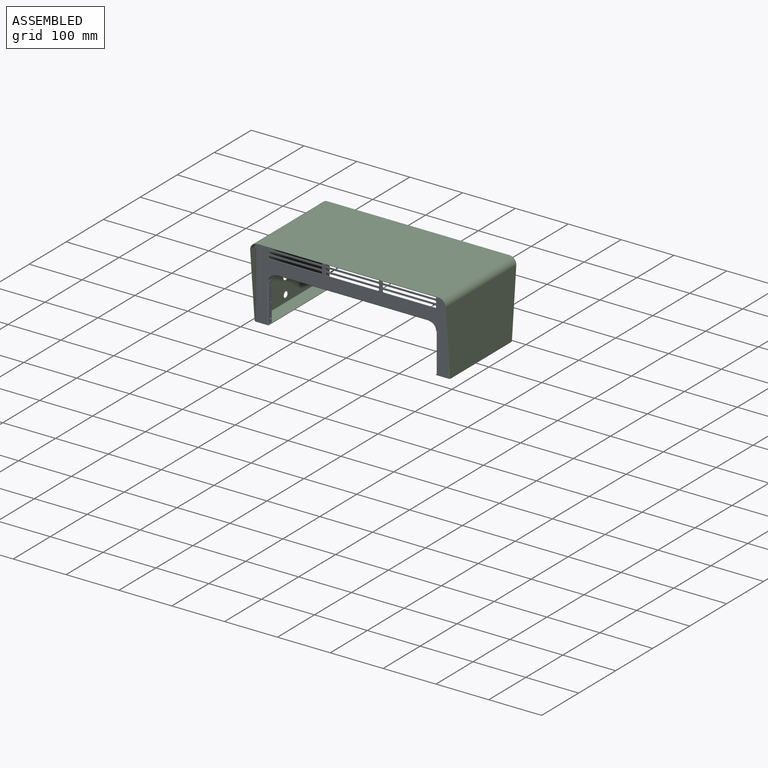
[diagram: assembled view]
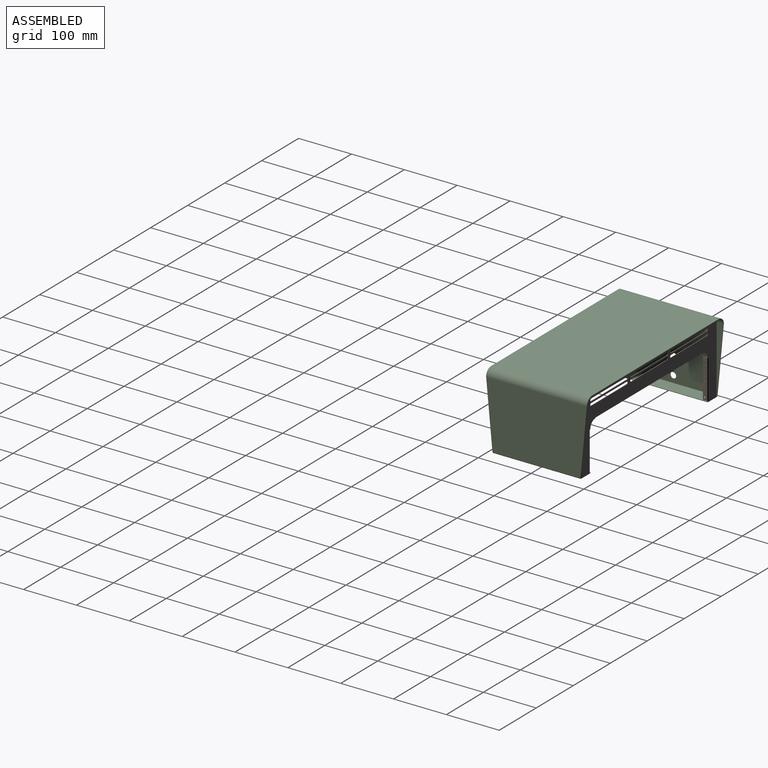
[diagram: assembled view, second angle]
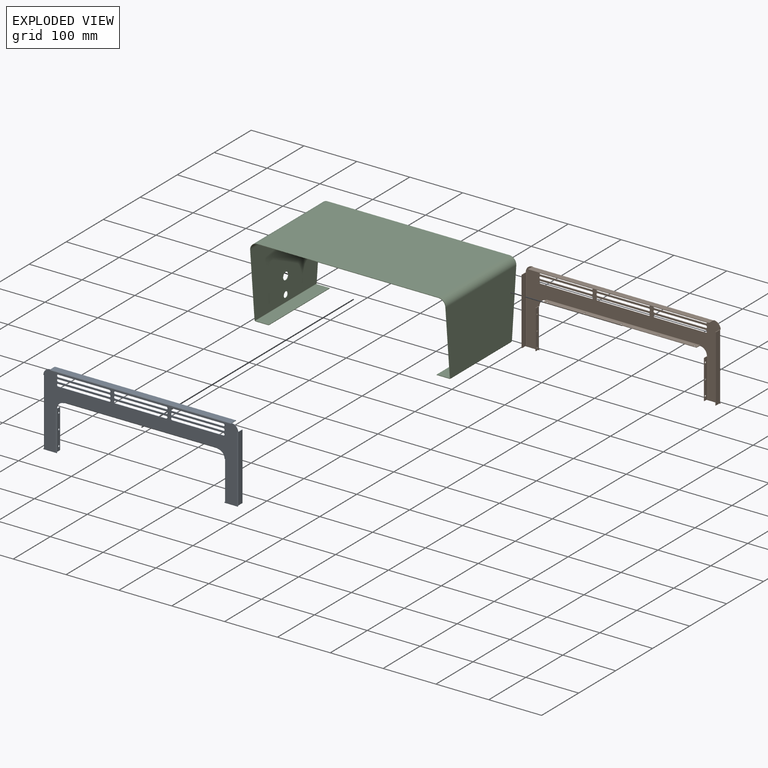
[diagram: exploded view]
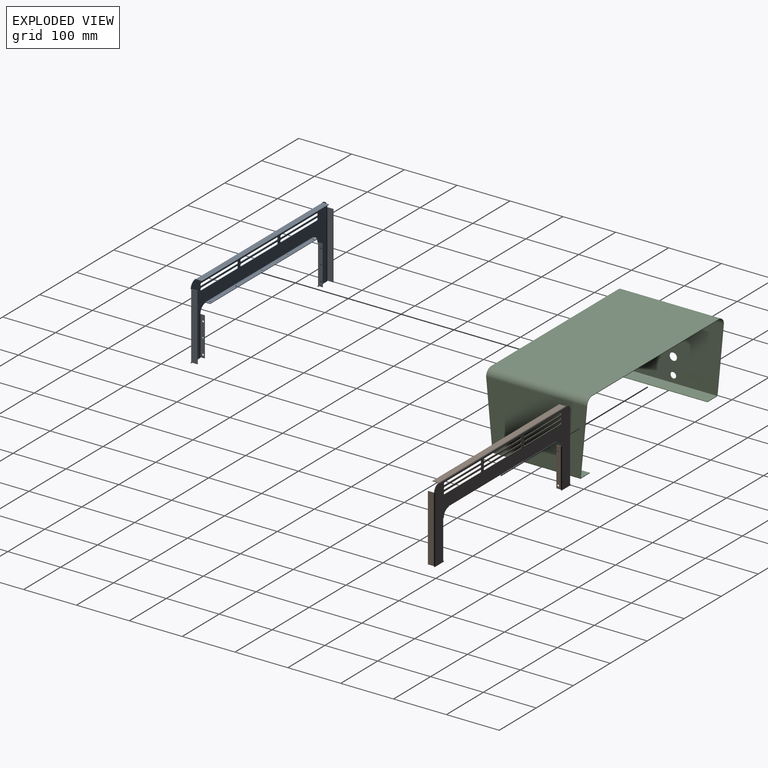
[diagram: exploded view, second angle]
ASSEMBLY  parts=3 mates=6
PART A: 127 faces, bbox 368.3x12.7x139.7 mm
  f0: plane 2.08x0.91mm, normal (0,0,-1), area 0.9mm2, adj f8,f58,f59,f82
  f1: plane 2.08x0.91mm, normal (0,0,1), area 0.9mm2, adj f12,f58,f59,f100
  f2: plane 2.08x0.91mm, normal (0,0,-1), area 0.9mm2, adj f16,f58,f59,f91
  f3: plane 2.08x0.91mm, normal (0,0,1), area 0.9mm2, adj f20,f58,f59,f104
  f4: plane 1.83x0.91mm, normal (-1,0,0), area 0.6mm2, adj f6,f58,f59,f78
  f5: plane 1.83x0.91mm, normal (1,0,0), area 0.6mm2, adj f14,f58,f59,f69
  f6: cylinder r=13.61mm len=13.61mm, axis (0,-1,0), area 19.6mm2, adj f4,f57,f58,f59
  f7: plane 1.83x0.91mm, normal (1,0,0), area 0.6mm2, adj f8,f58,f59,f78
  f8: cylinder r=13.61mm len=13.61mm, axis (0,-1,0), area 19.6mm2, adj f0,f7,f58,f59
  f9: plane 2.08x0.91mm, normal (0,0,1), area 0.9mm2, adj f10,f58,f59,f82
  f10: plane 1.59x0.91mm, normal (1,0,0), area 1.5mm2, adj f9,f11,f58,f59
  f11: plane 24.64x0.91mm, normal (0,0,-1), area 22.5mm2, adj f10,f58,f59,f60
  f12: plane 0.91x0.83mm, normal (-1,0,0), area 0.8mm2, adj f1,f58,f59,f60
  f13: plane 2.08x0.91mm, normal (0,0,-1), area 0.9mm2, adj f14,f58,f59,f100
  f14: cylinder r=12.7mm len=12.7mm, axis (0,-1,0), area 18.2mm2, adj f5,f13,f58,f59
  f15: plane 1.83x0.91mm, normal (-1,0,0), area 0.6mm2, adj f16,f58,f59,f69
  f16: cylinder r=12.7mm len=12.7mm, axis (0,-1,0), area 18.2mm2, adj f2,f15,f58,f59
  f17: plane 2.08x0.91mm, normal (0,0,1), area 0.9mm2, adj f18,f58,f59,f91
  f18: plane 0.91x0.83mm, normal (1,0,0), area 0.8mm2, adj f17,f58,f59,f61
  f19: plane 24.64x0.91mm, normal (0,0,-1), area 22.5mm2, adj f20,f58,f59,f61
  f20: plane 1.59x0.91mm, normal (-1,0,0), area 1.5mm2, adj f3,f19,f58,f59
  f21: plane 96.84x0.91mm, normal (0,0,1), area 88.5mm2, adj f22,f56,f58,f59
  f22: cylinder r=2.38mm len=4.76mm, axis (0,-1,0), area 6.8mm2, adj f21,f23,f58,f59
  f23: plane 96.84x0.91mm, normal (0,0,-1), area 88.5mm2, adj f22,f56,f58,f59
  f24: plane 96.84x0.91mm, normal (0,0,-1), area 88.5mm2, adj f25,f55,f58,f59
  f25: cylinder r=2.38mm len=4.76mm, axis (0,-1,0), area 6.8mm2, adj f24,f26,f58,f59
  f26: plane 96.84x0.91mm, normal (0,0,1), area 88.5mm2, adj f25,f55,f58,f59
  f27: plane 96.84x0.91mm, normal (0,0,1), area 88.5mm2, adj f28,f54,f58,f59
  f28: cylinder r=2.38mm len=4.76mm, axis (0,-1,0), area 6.8mm2, adj f27,f29,f58,f59
  f29: plane 96.84x0.91mm, normal (0,0,-1), area 88.5mm2, adj f28,f54,f58,f59
  f30: plane 96.84x0.91mm, normal (0,0,-1), area 88.5mm2, adj f31,f53,f58,f59
  f31: cylinder r=2.38mm len=4.76mm, axis (0,-1,0), area 6.8mm2, adj f30,f32,f58,f59
  f32: plane 96.84x0.91mm, normal (0,0,1), area 88.5mm2, adj f31,f53,f58,f59
  f33: plane 96.84x0.91mm, normal (0,0,-1), area 88.5mm2, adj f34,f52,f58,f59
  f34: cylinder r=2.38mm len=4.76mm, axis (0,-1,0), area 6.8mm2, adj f33,f35,f58,f59
  f35: plane 96.84x0.91mm, normal (0,0,1), area 88.5mm2, adj f34,f52,f58,f59
  f36: plane 96.84x0.91mm, normal (0,0,1), area 88.5mm2, adj f37,f51,f58,f59
  f37: cylinder r=2.38mm len=4.76mm, axis (0,-1,0), area 6.8mm2, adj f36,f38,f58,f59
  f38: plane 96.84x0.91mm, normal (0,0,-1), area 88.5mm2, adj f37,f51,f58,f59
  f39: plane 96.84x0.91mm, normal (0,0,-1), area 88.5mm2, adj f40,f50,f58,f59
  f40: cylinder r=2.38mm len=4.76mm, axis (0,-1,0), area 6.8mm2, adj f39,f41,f58,f59
  f41: plane 96.84x0.91mm, normal (0,0,1), area 88.5mm2, adj f40,f50,f58,f59
  f42: plane 96.84x0.91mm, normal (0,0,1), area 88.5mm2, adj f43,f49,f58,f59
  f43: cylinder r=2.38mm len=4.76mm, axis (0,-1,0), area 6.8mm2, adj f42,f44,f58,f59
  f44: plane 96.84x0.91mm, normal (0,0,-1), area 88.5mm2, adj f43,f49,f58,f59
  f45: plane 96.84x0.91mm, normal (0,0,-1), area 88.5mm2, adj f46,f48,f58,f59
  f46: cylinder r=2.38mm len=4.76mm, axis (0,-1,0), area 6.8mm2, adj f45,f47,f58,f59
  f47: plane 96.84x0.91mm, normal (0,0,1), area 88.5mm2, adj f46,f48,f58,f59
  f48: cylinder r=2.38mm len=4.76mm, axis (0,-1,0), area 6.8mm2, adj f45,f47,f58,f59
  f49: cylinder r=2.38mm len=4.76mm, axis (0,-1,0), area 6.8mm2, adj f42,f44,f58,f59
  f50: cylinder r=2.38mm len=4.76mm, axis (0,-1,0), area 6.8mm2, adj f39,f41,f58,f59
  f51: cylinder r=2.38mm len=4.76mm, axis (0,-1,0), area 6.8mm2, adj f36,f38,f58,f59
  f52: cylinder r=2.38mm len=4.76mm, axis (0,-1,0), area 6.8mm2, adj f33,f35,f58,f59
  f53: cylinder r=2.38mm len=4.76mm, axis (0,-1,0), area 6.8mm2, adj f30,f32,f58,f59
  f54: cylinder r=2.38mm len=4.76mm, axis (0,-1,0), area 6.8mm2, adj f27,f29,f58,f59
  f55: cylinder r=2.38mm len=4.76mm, axis (0,-1,0), area 6.8mm2, adj f24,f26,f58,f59
  f56: cylinder r=2.38mm len=4.76mm, axis (0,-1,0), area 6.8mm2, adj f21,f23,f58,f59
  f57: plane 2.08x0.91mm, normal (0,0,-1), area 0.9mm2, adj f6,f58,f59,f104
  f58: plane 368.3x139.7mm, normal (0,1,0), area 16937.5mm2, adj f0,f1,f2,f3,f4,f5,f6,f7
  f59: plane 368.3x139.7mm, normal (0,-1,0), area 16937.5mm2, adj f0,f1,f2,f3,f4,f5,f6,f7
  f60: cylinder r=0.76mm len=0.91mm, axis (0,1,0), area 1.1mm2, adj f11,f12,f58,f59
  f61: cylinder r=0.76mm len=0.91mm, axis (0,-1,0), area 1.1mm2, adj f18,f19,f58,f59
  f62: plane 342.9x0.91mm, normal (0,-1,0), area 313.5mm2, adj f63,f64,f65,f66
  f63: plane 10.87x0.91mm, normal (1,0,0), area 9.9mm2, adj f62,f65,f66,f68
  f64: plane 10.87x0.91mm, normal (-1,0,0), area 9.9mm2, adj f62,f65,f66,f67
  f65: plane 342.9x10.87mm, normal (0,0,1), area 3727.7mm2, adj f62,f63,f64,f69
  f66: plane 342.9x10.87mm, normal (0,0,-1), area 3727.7mm2, adj f62,f63,f64,f70
  f67: plane 1.83x0.91mm, normal (-1,0,0), area 0.9mm2, adj f59,f64,f69,f70
  f68: plane 1.83x0.91mm, normal (1,0,0), area 0.9mm2, adj f59,f63,f69,f70
  f69: cylinder r=1.83mm len=342.9mm, axis (-1,0,0), area 985mm2, adj f5,f15,f58,f65,f67,f68
  f70: cylinder r=0.91mm len=342.9mm, axis (-1,0,0), area 492.5mm2, adj f59,f66,f67,f68
  f71: plane 290.27x0.91mm, normal (0,-1,0), area 265.4mm2, adj f72,f73,f74,f75
  f72: plane 7.7x0.91mm, normal (-1,0,0), area 7mm2, adj f71,f74,f75,f77
  f73: plane 7.7x0.91mm, normal (1,0,0), area 7mm2, adj f71,f74,f75,f76
  f74: plane 290.27x7.7mm, normal (0,0,-1), area 2187.1mm2, adj f71,f72,f73,f78,f116,f117,f118,f119
  f75: plane 290.27x7.7mm, normal (0,0,1), area 2187.1mm2, adj f71,f72,f73,f79,f116,f117,f118,f119
  f76: plane 1.83x0.91mm, normal (1,0,0), area 0.9mm2, adj f59,f73,f78,f79
  f77: plane 1.83x0.91mm, normal (-1,0,0), area 0.9mm2, adj f59,f72,f78,f79
  f78: cylinder r=1.83mm len=290.27mm, axis (1,0,0), area 833.9mm2, adj f4,f7,f58,f74,f76,f77
  f79: cylinder r=0.91mm len=290.27mm, axis (1,0,0), area 416.9mm2, adj f59,f75,f76,f77
  f80: plane 1.83x0.91mm, normal (0,0,1), area 0.9mm2, adj f59,f82,f83,f113
  f81: plane 1.83x0.91mm, normal (0,0,-1), area 0.9mm2, adj f59,f82,f83,f112
  f82: cylinder r=1.83mm len=73.7mm, axis (0,0,1), area 211.7mm2, adj f0,f9,f58,f80,f81,f114
  f83: cylinder r=0.91mm len=73.7mm, axis (0,0,1), area 105.9mm2, adj f59,f80,f81,f115
  f84: plane 125.41x0.91mm, normal (0,-1,0), area 114.7mm2, adj f85,f86,f87,f88
  f85: plane 10.87x0.91mm, normal (0,0,-1), area 9.9mm2, adj f84,f87,f88,f90
  f86: plane 10.87x0.91mm, normal (0,0,1), area 9.9mm2, adj f84,f87,f88,f89
  f87: plane 125.41x10.87mm, normal (1,0,0), area 1363.4mm2, adj f84,f85,f86,f91
  f88: plane 125.41x10.87mm, normal (-1,0,0), area 1363.4mm2, adj f84,f85,f86,f92
  f89: plane 1.83x0.91mm, normal (0,0,1), area 0.9mm2, adj f59,f86,f91,f92
  f90: plane 1.83x0.91mm, normal (0,0,-1), area 0.9mm2, adj f59,f85,f91,f92
  f91: cylinder r=1.83mm len=125.41mm, axis (0,0,1), area 360.3mm2, adj f2,f17,f58,f87,f89,f90
  f92: cylinder r=0.91mm len=125.41mm, axis (0,0,1), area 180.1mm2, adj f59,f88,f89,f90
  f93: plane 125.41x0.91mm, normal (0,-1,0), area 114.7mm2, adj f94,f95,f96,f97
  f94: plane 10.87x0.91mm, normal (0,0,1), area 9.9mm2, adj f93,f96,f97,f99
  f95: plane 10.87x0.91mm, normal (0,0,-1), area 9.9mm2, adj f93,f96,f97,f98
  f96: plane 125.41x10.87mm, normal (-1,0,0), area 1363.4mm2, adj f93,f94,f95,f100
  f97: plane 125.41x10.87mm, normal (1,0,0), area 1363.4mm2, adj f93,f94,f95,f101
  f98: plane 1.83x0.91mm, normal (0,0,-1), area 0.9mm2, adj f59,f95,f100,f101
  f99: plane 1.83x0.91mm, normal (0,0,1), area 0.9mm2, adj f59,f94,f100,f101
  f100: cylinder r=1.83mm len=125.41mm, axis (0,0,-1), area 360.3mm2, adj f1,f13,f58,f96,f98,f99
  f101: cylinder r=0.91mm len=125.41mm, axis (0,0,-1), area 180.1mm2, adj f59,f97,f98,f99
  f102: plane 1.83x0.91mm, normal (0,0,-1), area 0.9mm2, adj f59,f104,f105,f108
  f103: plane 1.83x0.91mm, normal (0,0,1), area 0.9mm2, adj f59,f104,f105,f107
  f104: cylinder r=1.83mm len=73.7mm, axis (0,0,-1), area 211.7mm2, adj f3,f57,f58,f102,f103,f109
  f105: cylinder r=0.91mm len=73.7mm, axis (0,0,-1), area 105.9mm2, adj f59,f102,f103,f110
  f106: plane 73.7x0.91mm, normal (0,-1,0), area 67.4mm2, adj f107,f108,f109,f110
  f107: plane 7.7x0.91mm, normal (0,0,1), area 7mm2, adj f103,f106,f109,f110
  f108: plane 7.7x0.91mm, normal (0,0,-1), area 7mm2, adj f102,f106,f109,f110
  f109: plane 73.7x7.7mm, normal (-1,0,0), area 539.1mm2, adj f104,f106,f107,f108,f124,f125,f126
  f110: plane 73.7x7.7mm, normal (1,0,0), area 539.1mm2, adj f105,f106,f107,f108,f124,f125,f126
  f111: plane 73.7x0.91mm, normal (0,-1,0), area 67.4mm2, adj f112,f113,f114,f115
  f112: plane 7.7x0.91mm, normal (0,0,-1), area 7mm2, adj f81,f111,f114,f115
  f113: plane 7.7x0.91mm, normal (0,0,1), area 7mm2, adj f80,f111,f114,f115
  f114: plane 73.7x7.7mm, normal (1,0,0), area 539.1mm2, adj f82,f111,f112,f113,f121,f122,f123
  f115: plane 73.7x7.7mm, normal (-1,0,0), area 539.1mm2, adj f83,f111,f112,f113,f121,f122,f123
  f116: cylinder r=1.73mm len=3.45mm, axis (0,0,-1), area 9.9mm2, adj f74,f75
  f117: cylinder r=1.73mm len=3.45mm, axis (0,0,-1), area 9.9mm2, adj f74,f75
  f118: cylinder r=1.73mm len=3.45mm, axis (0,0,-1), area 9.9mm2, adj f74,f75
  f119: cylinder r=1.73mm len=3.45mm, axis (0,0,-1), area 9.9mm2, adj f74,f75
  f120: cylinder r=1.73mm len=3.45mm, axis (0,0,-1), area 9.9mm2, adj f74,f75
  f121: cylinder r=1.73mm len=3.45mm, axis (1,0,0), area 9.9mm2, adj f114,f115
  f122: cylinder r=1.73mm len=3.45mm, axis (1,0,0), area 9.9mm2, adj f114,f115
  f123: cylinder r=1.73mm len=3.45mm, axis (1,0,0), area 9.9mm2, adj f114,f115
  f124: cylinder r=1.73mm len=3.45mm, axis (-1,0,0), area 9.9mm2, adj f109,f110
  f125: cylinder r=1.73mm len=3.45mm, axis (-1,0,0), area 9.9mm2, adj f109,f110
  f126: cylinder r=1.73mm len=3.45mm, axis (-1,0,0), area 9.9mm2, adj f109,f110
PART B: same geometry as A
PART C: 51 faces, bbox 370.4x191x140.9 mm
  f0: plane 343.15x0.91mm, normal (0,-1,0), area 313.8mm2, adj f2,f3,f26,f48
  f1: plane 343.15x0.91mm, normal (0,1,0), area 313.8mm2, adj f2,f3,f27,f47
  f2: plane 343.15x190.5mm, normal (0,0,-1), area 65370.8mm2, adj f0,f1,f29,f50
  f3: plane 343.15x190.5mm, normal (0,0,1), area 65370.8mm2, adj f0,f1,f28,f49
  f4: plane 125.55x11.94mm, normal (0,-1,-0.09), area 115.3mm2, adj f5,f15,f16,f26
  f5: plane 0.91x0.76mm, normal (0,0,-1), area 0.7mm2, adj f4,f6,f15,f16
  f6: plane 0.91x0.03mm, normal (0,-1,0), area 0mm2, adj f5,f15,f16,f23
  f7: plane 0.91x0.03mm, normal (0,1,0), area 0mm2, adj f8,f15,f16,f22
  f8: plane 0.91x0.76mm, normal (0,0,-1), area 0.7mm2, adj f7,f14,f15,f16
  f9: plane 0.91x0.52mm, normal (0,0,1), area 0.5mm2, adj f10,f13,f15,f16
  f10: plane 1.52x0.91mm, normal (0,1,0), area 1.4mm2, adj f9,f11,f15,f16
  f11: plane 0.91x0.52mm, normal (0,0,-1), area 0.5mm2, adj f10,f13,f15,f16
  f12: cylinder r=5.56mm len=11.11mm, axis (1,0,0), area 31.9mm2, adj f15,f16
  f13: cylinder r=7.14mm len=14.29mm, axis (1,0,0), area 39.6mm2, adj f9,f11,f15,f16
  f14: plane 125.55x11.94mm, normal (0,1,-0.09), area 115.3mm2, adj f8,f15,f16,f27
  f15: plane 190.5x125.58mm, normal (1,0,0), area 22164.9mm2, adj f4,f5,f6,f7,f8,f9,f10,f11
  f16: plane 190.5x125.58mm, normal (-1,0,0), area 22164.9mm2, adj f4,f5,f6,f7,f8,f9,f10,f11
  f17: plane 165.1x0.91mm, normal (1,0,0), area 151mm2, adj f18,f19,f20,f21
  f18: plane 24.64x0.91mm, normal (0,1,0), area 22.5mm2, adj f17,f20,f21,f22
  f19: plane 24.64x0.91mm, normal (0,-1,0), area 22.5mm2, adj f17,f20,f21,f23
  f20: plane 165.1x24.64mm, normal (0,0,1), area 4067.7mm2, adj f17,f18,f19,f25
  f21: plane 165.1x24.64mm, normal (0,0,-1), area 4067.7mm2, adj f17,f18,f19,f24
  f22: plane 1.68x1.68mm, normal (0,1,0), area 1.8mm2, adj f7,f18,f24,f25
  f23: plane 1.68x1.68mm, normal (0,-1,0), area 1.8mm2, adj f6,f19,f24,f25
  f24: cylinder r=1.68mm len=165.1mm, axis (0,1,0), area 434.8mm2, adj f16,f21,f22,f23
  f25: cylinder r=0.76mm len=165.1mm, axis (0,1,0), area 197.6mm2, adj f15,f20,f22,f23
  f26: bspline ~13.61x13.61mm, area 18.9mm2, adj f0,f4,f28,f29
  f27: bspline ~13.61x13.61mm, area 18.9mm2, adj f1,f14,f28,f29
  f28: cylinder r=13.61mm len=191mm, axis (0,-1,0), area 4081mm2, adj f3,f16,f26,f27
  f29: cylinder r=12.7mm len=191mm, axis (0,-1,0), area 3806.9mm2, adj f2,f15,f26,f27
  f30: plane 0.91x0.76mm, normal (0,0,-1), area 0.7mm2, adj f31,f35,f36,f37
  f31: plane 0.91x0.03mm, normal (0,1,0), area 0mm2, adj f30,f36,f37,f44
  f32: plane 0.91x0.03mm, normal (0,-1,0), area 0mm2, adj f33,f36,f37,f43
  f33: plane 0.91x0.76mm, normal (0,0,-1), area 0.7mm2, adj f32,f34,f36,f37
  f34: plane 125.55x11.94mm, normal (0,-1,-0.09), area 115.3mm2, adj f33,f36,f37,f48
  f35: plane 125.55x11.94mm, normal (0,1,-0.09), area 115.3mm2, adj f30,f36,f37,f47
  f36: plane 190.5x125.58mm, normal (-1,0,0), area 22423mm2, adj f30,f31,f32,f33,f34,f35,f46,f50
  f37: plane 190.5x125.58mm, normal (1,0,0), area 22423mm2, adj f30,f31,f32,f33,f34,f35,f45,f49
  f38: plane 165.1x0.91mm, normal (-1,0,0), area 151mm2, adj f39,f40,f41,f42
  f39: plane 24.64x0.91mm, normal (0,-1,0), area 22.5mm2, adj f38,f41,f42,f43
  f40: plane 24.64x0.91mm, normal (0,1,0), area 22.5mm2, adj f38,f41,f42,f44
  f41: plane 165.1x24.64mm, normal (0,0,1), area 4067.7mm2, adj f38,f39,f40,f46
  f42: plane 165.1x24.64mm, normal (0,0,-1), area 4067.7mm2, adj f38,f39,f40,f45
  f43: plane 1.68x1.68mm, normal (0,-1,0), area 1.8mm2, adj f32,f39,f45,f46
  f44: plane 1.68x1.68mm, normal (0,1,0), area 1.8mm2, adj f31,f40,f45,f46
  f45: cylinder r=1.68mm len=165.1mm, axis (0,-1,0), area 434.8mm2, adj f37,f42,f43,f44
  f46: cylinder r=0.76mm len=165.1mm, axis (0,-1,0), area 197.6mm2, adj f36,f41,f43,f44
  f47: bspline ~13.61x13.61mm, area 18.9mm2, adj f1,f35,f49,f50
  f48: bspline ~13.61x13.61mm, area 18.9mm2, adj f0,f34,f49,f50
  f49: cylinder r=13.61mm len=191mm, axis (0,1,0), area 4081mm2, adj f3,f37,f47,f48
  f50: cylinder r=12.7mm len=191mm, axis (0,1,0), area 3806.9mm2, adj f2,f36,f47,f48
PLACE A rot(axis=(0,0,1),180deg) t=(-0.13,-83.46,-139.7)mm
PLACE B t=(0.13,83.46,-139.7)mm
PLACE C at identity fixed
MATE planar A.f59 <-> C.f39  axis (0,1,0) through (-0.13,-82.55,-39.14)mm
MATE planar C.f36 <-> B.f18  axis (-1,0,0) through (184.28,0,-75.87)mm
MATE planar A.f65 <-> C.f2  axis (0,0,1) through (-0.13,-83.01,0)mm
MATE planar C.f2 <-> B.f65  axis (0,0,-1) through (0,0,0)mm
MATE planar A.f18 <-> C.f15  axis (-1,0,0) through (-184.28,-83.01,-76.2)mm
MATE planar B.f59 <-> C.f40  axis (0,-1,0) through (0.13,82.55,-39.14)mm
